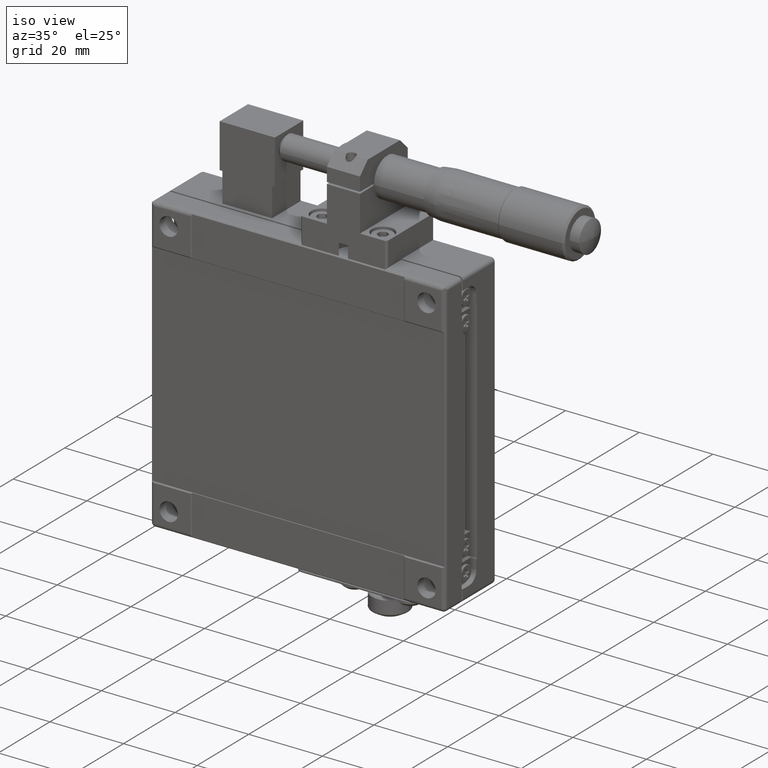
[diagram: clean part render]
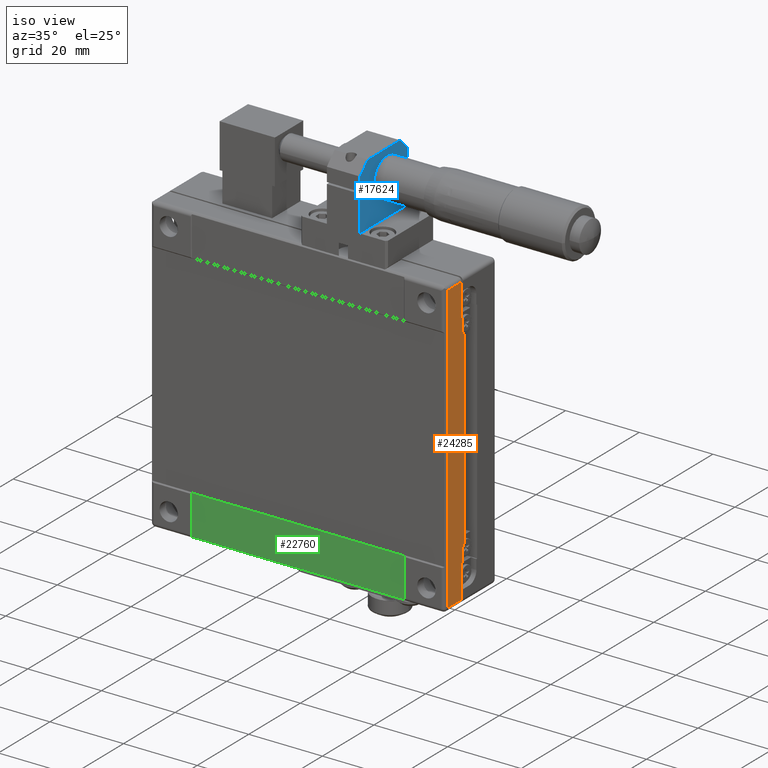
[diagram: same view with three faces highlighted in distinct colors, each labeled with its STEP entity id]
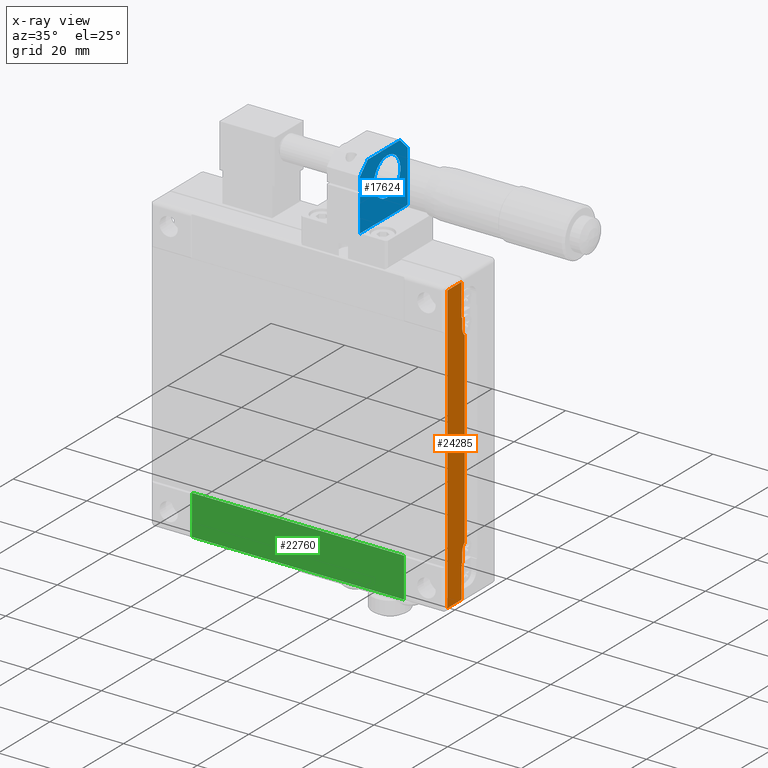
[diagram: x-ray of the same camera — body ghosted, the three highlighted faces saturated]
A machine part, iso view with three faces highlighted in distinct colors.
The next image is the same camera in x-ray (body ghosted, the three faces saturated) — at least one of them is partly hidden behind the body in this view.
Their STEP definitions:

[orange] entity #24285 — the highlighted planar face has unit normal (-1, 0, 0).
#16 = CARTESIAN_POINT ( 'NONE',  ( 36.40144876737934965, 0.5940459572061370652, 30.20000000000000284 ) ) ;
#107 = EDGE_CURVE ( 'NONE', #17036, #22047, #25911, .T. ) ;
#167 = LINE ( 'NONE', #16, #25987 ) ;
#218 = EDGE_CURVE ( 'NONE', #22047, #19389, #16280, .T. ) ;
#706 = ORIENTED_EDGE ( 'NONE', *, *, #15628, .F. ) ;
#948 = ORIENTED_EDGE ( 'NONE', *, *, #23444, .T. ) ;
#997 = CARTESIAN_POINT ( 'NONE',  ( 36.40144876737934965, -0.6052985161817939774, -30.20000000000000284 ) ) ;
#1182 = LINE ( 'NONE', #10992, #5852 ) ;
#1195 = VECTOR ( 'NONE', #30590, 1000.000000000000000 ) ;
#1253 = CIRCLE ( 'NONE', #3255, 2.749999999999999112 ) ;
#1603 = CARTESIAN_POINT ( 'NONE',  ( 36.40144876737934965, 0.3447014838182009822, -25.42093771137084701 ) ) ;
#1930 = ORIENTED_EDGE ( 'NONE', *, *, #29192, .T. ) ;
#2035 = LINE ( 'NONE', #9008, #7315 ) ;
#2446 = FACE_OUTER_BOUND ( 'NONE', #22446, .T. ) ;
#2996 = ORIENTED_EDGE ( 'NONE', *, *, #12454, .T. ) ;
#3220 = ORIENTED_EDGE ( 'NONE', *, *, #9801, .T. ) ;
#3255 = AXIS2_PLACEMENT_3D ( 'NONE', #26496, #9291, #23674 ) ;
#3758 = DIRECTION ( 'NONE',  ( 1.000000000000000000, 0.000000000000000000, 0.000000000000000000 ) ) ;
#4736 = VERTEX_POINT ( 'NONE', #21914 ) ;
#4947 = AXIS2_PLACEMENT_3D ( 'NONE', #19350, #16997, #26636 ) ;
#5159 = CARTESIAN_POINT ( 'NONE',  ( 36.40144876737934965, -0.6052985161817949766, 27.50000000000000000 ) ) ;
#5212 = CARTESIAN_POINT ( 'NONE',  ( 36.40144876737934965, -0.6052985161817939774, 30.20000000000000284 ) ) ;
#5321 = CIRCLE ( 'NONE', #17432, 2.749999999999999112 ) ;
#5842 = ORIENTED_EDGE ( 'NONE', *, *, #107, .T. ) ;
#5845 = VECTOR ( 'NONE', #26531, 1000.000000000000000 ) ;
#5852 = VECTOR ( 'NONE', #25370, 1000.000000000000000 ) ;
#6134 = CARTESIAN_POINT ( 'NONE',  ( 36.40144876737934965, -0.8552985161817949766, -30.20000000000000284 ) ) ;
#6338 = DIRECTION ( 'NONE',  ( 0.000000000000000000, 1.000000000000000000, 0.000000000000000000 ) ) ;
#6873 = ORIENTED_EDGE ( 'NONE', *, *, #218, .T. ) ;
#7155 = CARTESIAN_POINT ( 'NONE',  ( 36.40144876737934965, -6.355298516181790980, -39.00000000000000000 ) ) ;
#7225 = DIRECTION ( 'NONE',  ( 0.000000000000000000, -3.212450881438535199E-16, -1.000000000000000000 ) ) ;
#7315 = VECTOR ( 'NONE', #31235, 1000.000000000000000 ) ;
#7509 = VERTEX_POINT ( 'NONE', #14171 ) ;
#8099 = LINE ( 'NONE', #15690, #15551 ) ;
#9008 = CARTESIAN_POINT ( 'NONE',  ( 36.40144876737934965, -0.8552985161817949766, -30.20000000000000284 ) ) ;
#9291 = DIRECTION ( 'NONE',  ( -1.000000000000000000, 0.000000000000000000, 0.000000000000000000 ) ) ;
#9489 = CARTESIAN_POINT ( 'NONE',  ( 36.40144876737934965, 0.3447014838182009822, 25.42093771137084701 ) ) ;
#9557 = VERTEX_POINT ( 'NONE', #9489 ) ;
#9638 = CARTESIAN_POINT ( 'NONE',  ( 36.40144876737934965, -0.8552985161817949766, 30.20000000000000284 ) ) ;
#9801 = EDGE_CURVE ( 'NONE', #15248, #26683, #1253, .T. ) ;
#10231 = LINE ( 'NONE', #5159, #21732 ) ;
#10992 = CARTESIAN_POINT ( 'NONE',  ( 36.40144876737934965, -0.8552985161817980853, -40.00000000000000000 ) ) ;
#11116 = CARTESIAN_POINT ( 'NONE',  ( 36.40144876737934965, -0.8552985161817980853, 39.00000000000000000 ) ) ;
#11533 = VECTOR ( 'NONE', #19735, 1000.000000000000000 ) ;
#11834 = DIRECTION ( 'NONE',  ( 0.000000000000000000, -1.000000000000000000, 0.000000000000000000 ) ) ;
#12454 = EDGE_CURVE ( 'NONE', #23732, #19662, #1182, .T. ) ;
#13415 = DIRECTION ( 'NONE',  ( 0.000000000000000000, 0.000000000000000000, -1.000000000000000000 ) ) ;
#13674 = VERTEX_POINT ( 'NONE', #997 ) ;
#13773 = ORIENTED_EDGE ( 'NONE', *, *, #23526, .T. ) ;
#14085 = CARTESIAN_POINT ( 'NONE',  ( 36.40144876737934965, 2.259701483818204792, 39.00000000000000000 ) ) ;
#14171 = CARTESIAN_POINT ( 'NONE',  ( 36.40144876737934965, -0.6052985161817949766, 27.50000000000000000 ) ) ;
#15248 = VERTEX_POINT ( 'NONE', #18200 ) ;
#15534 = LINE ( 'NONE', #27977, #21601 ) ;
#15551 = VECTOR ( 'NONE', #27358, 1000.000000000000000 ) ;
#15628 = EDGE_CURVE ( 'NONE', #16224, #7509, #10231, .T. ) ;
#15690 = CARTESIAN_POINT ( 'NONE',  ( 36.40144876737934965, 0.3447014838182009822, -24.69999999999999929 ) ) ;
#15792 = CARTESIAN_POINT ( 'NONE',  ( 36.40144876737934965, 2.144701483818205023, 27.50000000000000000 ) ) ;
#16224 = VERTEX_POINT ( 'NONE', #5212 ) ;
#16280 = LINE ( 'NONE', #19253, #5845 ) ;
#16427 = VECTOR ( 'NONE', #11834, 1000.000000000000000 ) ;
#16997 = DIRECTION ( 'NONE',  ( -1.000000000000000000, 0.000000000000000000, 0.000000000000000000 ) ) ;
#17036 = VERTEX_POINT ( 'NONE', #11116 ) ;
#17432 = AXIS2_PLACEMENT_3D ( 'NONE', #15792, #3758, #13415 ) ;
#18008 = CARTESIAN_POINT ( 'NONE',  ( 36.40144876737934965, -0.8552985161817980853, -39.00000000000000000 ) ) ;
#18200 = CARTESIAN_POINT ( 'NONE',  ( 36.40144876737934965, -0.6052985161817949766, -27.50000000000000000 ) ) ;
#18616 = CARTESIAN_POINT ( 'NONE',  ( 36.40144876737934965, -0.6052985161817949766, -27.50000000000000000 ) ) ;
#19242 = ORIENTED_EDGE ( 'NONE', *, *, #27161, .T. ) ;
#19253 = CARTESIAN_POINT ( 'NONE',  ( 36.40144876737934965, -6.355298516181790980, -30.81499999999999773 ) ) ;
#19350 = CARTESIAN_POINT ( 'NONE',  ( 36.40144876737934965, 2.259701483818204792, -30.81499999999999773 ) ) ;
#19389 = VERTEX_POINT ( 'NONE', #7155 ) ;
#19662 = VERTEX_POINT ( 'NONE', #6134 ) ;
#19735 = DIRECTION ( 'NONE',  ( 0.000000000000000000, -2.655188993842049955E-16, 1.000000000000000000 ) ) ;
#19802 = EDGE_CURVE ( 'NONE', #7509, #9557, #5321, .T. ) ;
#19872 = EDGE_CURVE ( 'NONE', #13674, #15248, #20689, .T. ) ;
#20689 = LINE ( 'NONE', #18616, #1195 ) ;
#20748 = ORIENTED_EDGE ( 'NONE', *, *, #19872, .T. ) ;
#21601 = VECTOR ( 'NONE', #6338, 1000.000000000000000 ) ;
#21730 = PLANE ( 'NONE',  #4947 ) ;
#21732 = VECTOR ( 'NONE', #7225, 1000.000000000000000 ) ;
#21914 = CARTESIAN_POINT ( 'NONE',  ( 36.40144876737934965, -0.8552985161817949766, 30.20000000000000284 ) ) ;
#21926 = ORIENTED_EDGE ( 'NONE', *, *, #25868, .T. ) ;
#22047 = VERTEX_POINT ( 'NONE', #29932 ) ;
#22446 = EDGE_LOOP ( 'NONE', ( #5842, #6873, #948, #2996, #19242, #20748, #3220, #13773, #25210, #706, #1930, #21926 ) ) ;
#23444 = EDGE_CURVE ( 'NONE', #19389, #23732, #15534, .T. ) ;
#23526 = EDGE_CURVE ( 'NONE', #26683, #9557, #8099, .T. ) ;
#23674 = DIRECTION ( 'NONE',  ( 0.000000000000000000, 0.000000000000000000, 1.000000000000000000 ) ) ;
#23732 = VERTEX_POINT ( 'NONE', #18008 ) ;
#24285 = ADVANCED_FACE ( 'NONE', ( #2446 ), #21730, .F. ) ;
#24326 = LINE ( 'NONE', #9638, #11533 ) ;
#25210 = ORIENTED_EDGE ( 'NONE', *, *, #19802, .F. ) ;
#25370 = DIRECTION ( 'NONE',  ( 0.000000000000000000, 2.655188993842049955E-16, 1.000000000000000000 ) ) ;
#25868 = EDGE_CURVE ( 'NONE', #4736, #17036, #24326, .T. ) ;
#25911 = LINE ( 'NONE', #14085, #16427 ) ;
#25987 = VECTOR ( 'NONE', #28768, 1000.000000000000000 ) ;
#26496 = CARTESIAN_POINT ( 'NONE',  ( 36.40144876737934965, 2.144701483818205023, -27.50000000000000000 ) ) ;
#26531 = DIRECTION ( 'NONE',  ( 0.000000000000000000, 0.000000000000000000, -1.000000000000000000 ) ) ;
#26636 = DIRECTION ( 'NONE',  ( 0.000000000000000000, 0.000000000000000000, 1.000000000000000000 ) ) ;
#26683 = VERTEX_POINT ( 'NONE', #1603 ) ;
#27161 = EDGE_CURVE ( 'NONE', #19662, #13674, #2035, .T. ) ;
#27358 = DIRECTION ( 'NONE',  ( 0.000000000000000000, 0.000000000000000000, 1.000000000000000000 ) ) ;
#27977 = CARTESIAN_POINT ( 'NONE',  ( 36.40144876737934965, 2.259701483818204792, -39.00000000000000000 ) ) ;
#28768 = DIRECTION ( 'NONE',  ( 0.000000000000000000, -1.000000000000000000, 0.000000000000000000 ) ) ;
#29192 = EDGE_CURVE ( 'NONE', #16224, #4736, #167, .T. ) ;
#29932 = CARTESIAN_POINT ( 'NONE',  ( 36.40144876737934965, -6.355298516181790980, 39.00000000000000000 ) ) ;
#30590 = DIRECTION ( 'NONE',  ( 0.000000000000000000, -3.212450881438535199E-16, 1.000000000000000000 ) ) ;
#31235 = DIRECTION ( 'NONE',  ( 0.000000000000000000, 1.000000000000000000, 0.000000000000000000 ) ) ;

[blue] entity #17624 — the highlighted planar face has unit normal (-1, 0, -0).
#36 = ORIENTED_EDGE ( 'NONE', *, *, #7096, .F. ) ;
#199 = EDGE_CURVE ( 'NONE', #3463, #13086, #24011, .T. ) ;
#2172 = AXIS2_PLACEMENT_3D ( 'NONE', #20331, #10852, #20664 ) ;
#3297 = EDGE_CURVE ( 'NONE', #3463, #29841, #24177, .T. ) ;
#3463 = VERTEX_POINT ( 'NONE', #4039 ) ;
#3728 = PLANE ( 'NONE',  #2172 ) ;
#4039 = CARTESIAN_POINT ( 'NONE',  ( 13.15144876737934077, -7.055298516181800039, 56.75000000000000000 ) ) ;
#4276 = DIRECTION ( 'NONE',  ( 0.000000000000000000, -1.000000000000000000, -1.020053401408109994E-16 ) ) ;
#4606 = LINE ( 'NONE', #28171, #27164 ) ;
#5154 = EDGE_CURVE ( 'NONE', #13243, #14618, #20416, .T. ) ;
#5369 = EDGE_CURVE ( 'NONE', #15286, #27814, #9648, .T. ) ;
#5450 = VECTOR ( 'NONE', #5744, 1000.000000000000000 ) ;
#5744 = DIRECTION ( 'NONE',  ( 0.000000000000000000, -1.000000000000000000, 0.000000000000000000 ) ) ;
#6040 = CARTESIAN_POINT ( 'NONE',  ( 13.15144876737934077, 11.44470148381819818, 64.00000000000000000 ) ) ;
#6242 = DIRECTION ( 'NONE',  ( 1.020425574104003999E-16, 0.000000000000000000, -1.000000000000000000 ) ) ;
#6280 = ORIENTED_EDGE ( 'NONE', *, *, #14239, .T. ) ;
#6454 = CARTESIAN_POINT ( 'NONE',  ( 13.15144876737934077, -7.055298516181800039, 47.00000000000000000 ) ) ;
#6638 = CARTESIAN_POINT ( 'NONE',  ( 13.15144876737934077, -4.055298516181805368, 64.00000000000000000 ) ) ;
#6659 = CARTESIAN_POINT ( 'NONE',  ( 13.15144876737934077, 11.44470148381819818, 47.00000000000000000 ) ) ;
#7091 = ORIENTED_EDGE ( 'NONE', *, *, #3297, .F. ) ;
#7096 = EDGE_CURVE ( 'NONE', #8176, #13086, #17607, .T. ) ;
#7352 = VECTOR ( 'NONE', #21648, 1000.000000000000000 ) ;
#7370 = CARTESIAN_POINT ( 'NONE',  ( 13.15144876737934077, 3.444701483818194632, 57.00000000000000000 ) ) ;
#7868 = ORIENTED_EDGE ( 'NONE', *, *, #28029, .T. ) ;
#8176 = VERTEX_POINT ( 'NONE', #6659 ) ;
#8181 = VERTEX_POINT ( 'NONE', #25936 ) ;
#8776 = CARTESIAN_POINT ( 'NONE',  ( 13.15144876737934077, 11.44470148381819818, 64.00000000000000000 ) ) ;
#9503 = CARTESIAN_POINT ( 'NONE',  ( 13.15144876737934077, -1.699226976026500191, 57.25000000000000000 ) ) ;
#9509 = VECTOR ( 'NONE', #4276, 1000.000000000000000 ) ;
#9648 = LINE ( 'NONE', #28893, #9509 ) ;
#10574 = DIRECTION ( 'NONE',  ( 1.020425574104003999E-16, 0.000000000000000000, -1.000000000000000000 ) ) ;
#10852 = DIRECTION ( 'NONE',  ( -1.000000000000000000, 0.000000000000000000, -1.020425574104003999E-16 ) ) ;
#11007 = CARTESIAN_POINT ( 'NONE',  ( 13.15144876737934077, -1.699226976026500191, 56.75000000000000000 ) ) ;
#11264 = ORIENTED_EDGE ( 'NONE', *, *, #5369, .F. ) ;
#11718 = DIRECTION ( 'NONE',  ( -7.215498431451157696E-17, -0.7071067811865489050, 0.7071067811865460184 ) ) ;
#11994 = CARTESIAN_POINT ( 'NONE',  ( 13.15144876737934077, -7.055298516181800039, 64.00000000000000000 ) ) ;
#12914 = FACE_OUTER_BOUND ( 'NONE', #30543, .T. ) ;
#12946 = CARTESIAN_POINT ( 'NONE',  ( 13.15144876737934077, -7.055298516181800039, 64.00000000000000000 ) ) ;
#13086 = VERTEX_POINT ( 'NONE', #6454 ) ;
#13243 = VERTEX_POINT ( 'NONE', #21027 ) ;
#13311 = DIRECTION ( 'NONE',  ( 0.000000000000000000, -1.000000000000000000, 0.000000000000000000 ) ) ;
#13368 = EDGE_CURVE ( 'NONE', #8181, #8176, #18570, .T. ) ;
#13616 = LINE ( 'NONE', #6638, #30413 ) ;
#14239 = EDGE_CURVE ( 'NONE', #14618, #16569, #13616, .T. ) ;
#14618 = VERTEX_POINT ( 'NONE', #18463 ) ;
#15223 = ORIENTED_EDGE ( 'NONE', *, *, #5154, .T. ) ;
#15286 = VERTEX_POINT ( 'NONE', #9503 ) ;
#16286 = DIRECTION ( 'NONE',  ( 7.215498431451188511E-17, -0.7071067811865460184, -0.7071067811865489050 ) ) ;
#16372 = VECTOR ( 'NONE', #10574, 1000.000000000000000 ) ;
#16436 = CARTESIAN_POINT ( 'NONE',  ( 13.15144876737934077, -7.055298516181800039, 57.25000000000000000 ) ) ;
#16569 = VERTEX_POINT ( 'NONE', #18730 ) ;
#17018 = DIRECTION ( 'NONE',  ( -1.000000000000000000, 0.000000000000000000, 0.000000000000000000 ) ) ;
#17292 = ORIENTED_EDGE ( 'NONE', *, *, #199, .T. ) ;
#17607 = LINE ( 'NONE', #25038, #5450 ) ;
#17624 = ADVANCED_FACE ( 'NONE', ( #12914 ), #3728, .F. ) ;
#17894 = CIRCLE ( 'NONE', #29989, 5.150000000000002132 ) ;
#18316 = VECTOR ( 'NONE', #27427, 1000.000000000000000 ) ;
#18463 = CARTESIAN_POINT ( 'NONE',  ( 13.15144876737934077, -4.055298516181800039, 64.00000000000000000 ) ) ;
#18570 = LINE ( 'NONE', #8776, #21052 ) ;
#18730 = CARTESIAN_POINT ( 'NONE',  ( 13.15144876737934077, -7.055298516181800039, 61.00000000000000000 ) ) ;
#20331 = CARTESIAN_POINT ( 'NONE',  ( 13.15144876737934077, 11.44470148381819818, 64.00000000000000000 ) ) ;
#20416 = LINE ( 'NONE', #6040, #23645 ) ;
#20664 = DIRECTION ( 'NONE',  ( -1.020425574104003999E-16, 0.000000000000000000, 1.000000000000000000 ) ) ;
#21027 = CARTESIAN_POINT ( 'NONE',  ( 13.15144876737934077, 8.444701483818191079, 64.00000000000000000 ) ) ;
#21052 = VECTOR ( 'NONE', #6242, 1000.000000000000000 ) ;
#21388 = ORIENTED_EDGE ( 'NONE', *, *, #25445, .T. ) ;
#21648 = DIRECTION ( 'NONE',  ( 1.020425574104003999E-16, 0.000000000000000000, -1.000000000000000000 ) ) ;
#23645 = VECTOR ( 'NONE', #13311, 1000.000000000000000 ) ;
#23781 = ORIENTED_EDGE ( 'NONE', *, *, #28519, .T. ) ;
#24011 = LINE ( 'NONE', #11994, #7352 ) ;
#24177 = LINE ( 'NONE', #24755, #18316 ) ;
#24282 = DIRECTION ( 'NONE',  ( 0.000000000000000000, 0.000000000000000000, 1.000000000000000000 ) ) ;
#24755 = CARTESIAN_POINT ( 'NONE',  ( 13.15144876737934077, 0.4103471133796080528, 56.75000000000000000 ) ) ;
#25038 = CARTESIAN_POINT ( 'NONE',  ( 13.15144876737934077, 11.44470148381819818, 47.00000000000000000 ) ) ;
#25445 = EDGE_CURVE ( 'NONE', #8181, #13243, #4606, .T. ) ;
#25691 = ORIENTED_EDGE ( 'NONE', *, *, #13368, .F. ) ;
#25936 = CARTESIAN_POINT ( 'NONE',  ( 13.15144876737934077, 11.44470148381819818, 61.00000000000000000 ) ) ;
#27164 = VECTOR ( 'NONE', #11718, 1000.000000000000114 ) ;
#27306 = LINE ( 'NONE', #12946, #16372 ) ;
#27427 = DIRECTION ( 'NONE',  ( 0.000000000000000000, 1.000000000000000000, 1.020053401408109994E-16 ) ) ;
#27814 = VERTEX_POINT ( 'NONE', #16436 ) ;
#28029 = EDGE_CURVE ( 'NONE', #16569, #27814, #27306, .T. ) ;
#28171 = CARTESIAN_POINT ( 'NONE',  ( 13.15144876737934077, 11.44470148381819818, 61.00000000000000000 ) ) ;
#28519 = EDGE_CURVE ( 'NONE', #15286, #29841, #17894, .T. ) ;
#28893 = CARTESIAN_POINT ( 'NONE',  ( 13.15144876737934077, 0.4103471133796080528, 57.25000000000000000 ) ) ;
#29841 = VERTEX_POINT ( 'NONE', #11007 ) ;
#29989 = AXIS2_PLACEMENT_3D ( 'NONE', #7370, #17018, #24282 ) ;
#30413 = VECTOR ( 'NONE', #16286, 1000.000000000000114 ) ;
#30543 = EDGE_LOOP ( 'NONE', ( #23781, #7091, #17292, #36, #25691, #21388, #15223, #6280, #7868, #11264 ) ) ;

[green] entity #22760 — the highlighted planar face has unit normal (-0, 1, 0).
#2216 = EDGE_CURVE ( 'NONE', #7596, #12661, #15732, .T. ) ;
#3331 = PLANE ( 'NONE',  #22014 ) ;
#4704 = EDGE_CURVE ( 'NONE', #24451, #12661, #7855, .T. ) ;
#5391 = CARTESIAN_POINT ( 'NONE',  ( 25.20144876737935036, -7.155298516181789914, -40.00000000000000000 ) ) ;
#5699 = DIRECTION ( 'NONE',  ( -0.000000000000000000, 1.000000000000000000, 0.000000000000000000 ) ) ;
#5784 = ORIENTED_EDGE ( 'NONE', *, *, #17220, .F. ) ;
#5925 = DIRECTION ( 'NONE',  ( 0.000000000000000000, 0.000000000000000000, 1.000000000000000000 ) ) ;
#6074 = CARTESIAN_POINT ( 'NONE',  ( 25.20144876737935036, -7.155298516181789914, -40.00000000000000000 ) ) ;
#7596 = VERTEX_POINT ( 'NONE', #17626 ) ;
#7757 = ORIENTED_EDGE ( 'NONE', *, *, #4704, .F. ) ;
#7762 = FACE_OUTER_BOUND ( 'NONE', #11713, .T. ) ;
#7855 = LINE ( 'NONE', #24450, #30147 ) ;
#11011 = LINE ( 'NONE', #15451, #11751 ) ;
#11713 = EDGE_LOOP ( 'NONE', ( #5784, #23530, #16096, #7757 ) ) ;
#11751 = VECTOR ( 'NONE', #22855, 1000.000000000000000 ) ;
#12277 = DIRECTION ( 'NONE',  ( 1.000000000000000000, 0.000000000000000000, 0.000000000000000000 ) ) ;
#12661 = VERTEX_POINT ( 'NONE', #20283 ) ;
#15451 = CARTESIAN_POINT ( 'NONE',  ( -32.39855123262064751, -7.155298516181789914, -39.60000000000000142 ) ) ;
#15651 = VERTEX_POINT ( 'NONE', #27135 ) ;
#15732 = LINE ( 'NONE', #6074, #23392 ) ;
#16096 = ORIENTED_EDGE ( 'NONE', *, *, #2216, .T. ) ;
#17220 = EDGE_CURVE ( 'NONE', #15651, #24451, #29864, .T. ) ;
#17563 = DIRECTION ( 'NONE',  ( 1.000000000000000000, 0.000000000000000000, 0.000000000000000000 ) ) ;
#17567 = CARTESIAN_POINT ( 'NONE',  ( -32.39855123262064751, -7.155298516181789914, -40.00000000000000000 ) ) ;
#17599 = EDGE_CURVE ( 'NONE', #15651, #7596, #11011, .T. ) ;
#17626 = CARTESIAN_POINT ( 'NONE',  ( 25.20144876737935036, -7.155298516181789914, -39.60000000000000142 ) ) ;
#19140 = CARTESIAN_POINT ( 'NONE',  ( -32.39855123262064751, -7.155298516181789914, -28.80000000000000071 ) ) ;
#20283 = CARTESIAN_POINT ( 'NONE',  ( 25.20144876737935036, -7.155298516181789914, -28.80000000000000071 ) ) ;
#22014 = AXIS2_PLACEMENT_3D ( 'NONE', #5391, #5699, #17563 ) ;
#22760 = ADVANCED_FACE ( 'NONE', ( #7762 ), #3331, .F. ) ;
#22855 = DIRECTION ( 'NONE',  ( 1.000000000000000000, 0.000000000000000000, 0.000000000000000000 ) ) ;
#23392 = VECTOR ( 'NONE', #5925, 1000.000000000000000 ) ;
#23530 = ORIENTED_EDGE ( 'NONE', *, *, #17599, .T. ) ;
#24450 = CARTESIAN_POINT ( 'NONE',  ( 36.40144876737934965, -7.155298516181789914, -28.80000000000000071 ) ) ;
#24451 = VERTEX_POINT ( 'NONE', #19140 ) ;
#27135 = CARTESIAN_POINT ( 'NONE',  ( -32.39855123262064751, -7.155298516181789914, -39.60000000000000142 ) ) ;
#28369 = VECTOR ( 'NONE', #29242, 1000.000000000000000 ) ;
#29242 = DIRECTION ( 'NONE',  ( 0.000000000000000000, 0.000000000000000000, 1.000000000000000000 ) ) ;
#29864 = LINE ( 'NONE', #17567, #28369 ) ;
#30147 = VECTOR ( 'NONE', #12277, 1000.000000000000000 ) ;